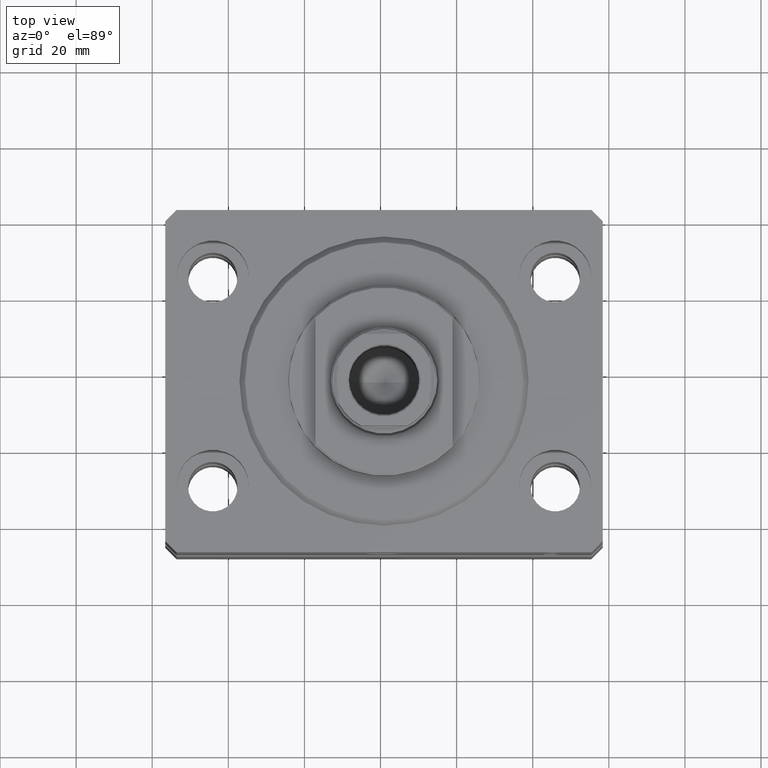
[diagram: clean part render]
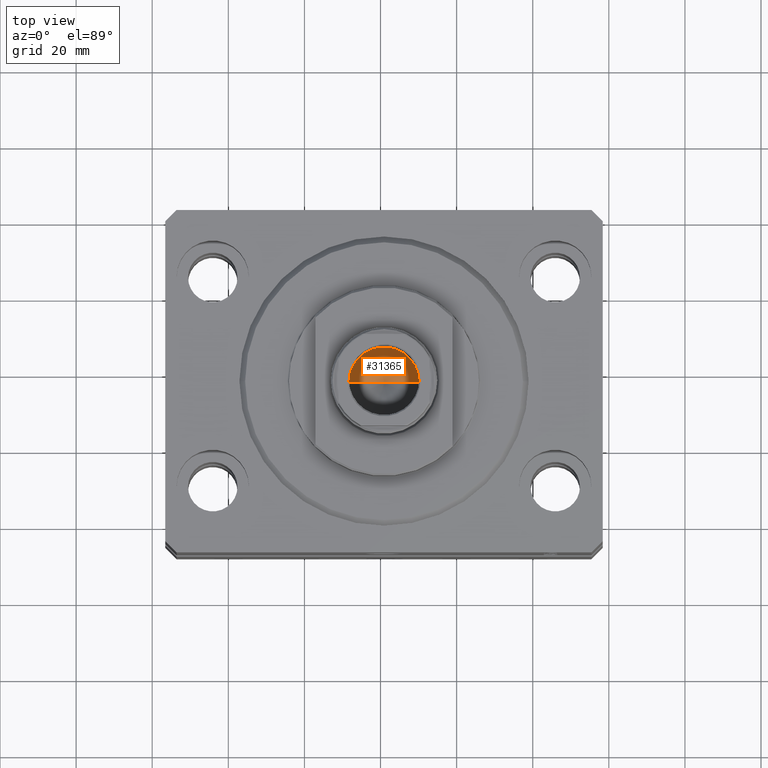
[diagram: same view with one face highlighted and labeled with its STEP entity id]
A machine part, top view. The second image highlights one B-rep face of the part: STEP entity #31365.
In plain terms, the highlighted conical surface has half-angle 59 deg.
Its self-contained STEP definition (entity closure, byte-faithful):
#515 = CARTESIAN_POINT ( 'NONE',  ( -9.249999999999994671, 1.132798289211300909E-15, 72.09999999999999432 ) ) ;
#1465 = CARTESIAN_POINT ( 'NONE',  ( 0.000000000000000000, 0.000000000000000000, 72.09999999999999432 ) ) ;
#3315 = EDGE_LOOP ( 'NONE', ( #19633, #7570, #26580 ) ) ;
#3925 = CARTESIAN_POINT ( 'NONE',  ( 9.249999999999994671, 0.000000000000000000, 72.09999999999999432 ) ) ;
#4458 = DIRECTION ( 'NONE',  ( -0.8571673007021117785, 1.049727191138617956E-16, 0.5150380749100550437 ) ) ;
#7570 = ORIENTED_EDGE ( 'NONE', *, *, #13976, .T. ) ;
#7714 = LINE ( 'NONE', #515, #45941 ) ;
#11005 = CONICAL_SURFACE ( 'NONE', #19907, 9.249999999999994671, 1.029744258676653423 ) ;
#12034 = DIRECTION ( 'NONE',  ( -0.000000000000000000, -0.000000000000000000, 1.000000000000000000 ) ) ;
#12827 = DIRECTION ( 'NONE',  ( -0.000000000000000000, -0.000000000000000000, 1.000000000000000000 ) ) ;
#13976 = EDGE_CURVE ( 'NONE', #16907, #22287, #35724, .T. ) ;
#16532 = DIRECTION ( 'NONE',  ( 0.8571673007021117785, 0.000000000000000000, 0.5150380749100550437 ) ) ;
#16907 = VERTEX_POINT ( 'NONE', #18386 ) ;
#18326 = CARTESIAN_POINT ( 'NONE',  ( -9.249999999999994671, 1.132798289211300909E-15, 72.09999999999999432 ) ) ;
#18386 = CARTESIAN_POINT ( 'NONE',  ( -1.046994375366439223E-14, 0.000000000000000000, 66.54203927399505858 ) ) ;
#19633 = ORIENTED_EDGE ( 'NONE', *, *, #37426, .F. ) ;
#19907 = AXIS2_PLACEMENT_3D ( 'NONE', #26408, #12034, #40573 ) ;
#22287 = VERTEX_POINT ( 'NONE', #23947 ) ;
#23947 = CARTESIAN_POINT ( 'NONE',  ( 9.249999999999994671, 0.000000000000000000, 72.09999999999999432 ) ) ;
#26408 = CARTESIAN_POINT ( 'NONE',  ( 0.000000000000000000, 0.000000000000000000, 72.09999999999999432 ) ) ;
#26580 = ORIENTED_EDGE ( 'NONE', *, *, #40526, .T. ) ;
#26758 = DIRECTION ( 'NONE',  ( 1.000000000000000000, 0.000000000000000000, 0.000000000000000000 ) ) ;
#29669 = FACE_OUTER_BOUND ( 'NONE', #3315, .T. ) ;
#31365 = ADVANCED_FACE ( 'NONE', ( #29669 ), #11005, .F. ) ;
#32583 = AXIS2_PLACEMENT_3D ( 'NONE', #1465, #12827, #26758 ) ;
#35724 = LINE ( 'NONE', #3925, #41123 ) ;
#37426 = EDGE_CURVE ( 'NONE', #16907, #41158, #7714, .T. ) ;
#37741 = CIRCLE ( 'NONE', #32583, 9.249999999999994671 ) ;
#40526 = EDGE_CURVE ( 'NONE', #22287, #41158, #37741, .T. ) ;
#40573 = DIRECTION ( 'NONE',  ( 1.000000000000000000, 0.000000000000000000, 0.000000000000000000 ) ) ;
#41123 = VECTOR ( 'NONE', #16532, 1000.000000000000000 ) ;
#41158 = VERTEX_POINT ( 'NONE', #18326 ) ;
#45941 = VECTOR ( 'NONE', #4458, 1000.000000000000000 ) ;